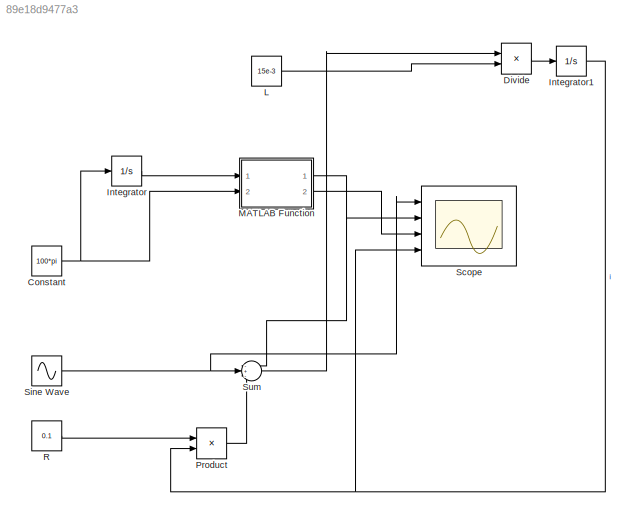
MODEL slx_89e18d9477a3
KIND model
CONFIG AbsTol = auto
CONFIG EnableMultiTasking = off
CONFIG FixedStep = auto
CONFIG MaxStep = 1e-5
CONFIG MinStep = auto
CONFIG RelTol = 1e-3
CONFIG SampleTimeConstraint = Unconstrained
CONFIG SolverName = ode23t
CONFIG StartTime = 0.0
CONFIG StopTime = 2
BLOCK [Constant] Constant
  Value = 100*pi
BLOCK [Product] Divide
  Inputs = */
  Ports = [2, 1]
BLOCK [Integrator] Integrator
  Ports = [1, 1]
BLOCK [Integrator] Integrator1
  Ports = [1, 1]
BLOCK [Constant] L
  Value = 15e-3
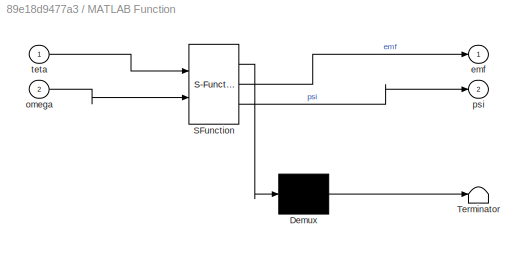
BLOCK [SubSystem] MATLAB Function
  ErrorFcn = Stateflow.Translate.translate
  PermitHierarchicalResolution = ExplicitOnly
  Ports = [2, 2]
  RequestExecContextInheritance = off
  SFBlockType = MATLAB Function
  TreatAsAtomicUnit = on
BLOCK [Demux] MATLAB Function/ Demux 
  Outputs = 1
  Ports = [1, 1]
BLOCK [S-Function] MATLAB Function/ SFunction 
  EnableBusSupport = on
  FunctionName = sf_sfun
  PortCounts = [2 3]
  Ports = [2, 3]
  SFcnIsStateOwnerBlock = off
  SFunctionDeploymentMode = off
  Tag = Stateflow S-Function 2
BLOCK [Terminator] MATLAB Function/ Terminator 
BLOCK [Outport] MATLAB Function/emf
BLOCK [Inport] MATLAB Function/omega
  Port = 2
BLOCK [Outport] MATLAB Function/psi
  Port = 2
BLOCK [Inport] MATLAB Function/teta
BLOCK [Product] Product
  Ports = [2, 1]
BLOCK [Constant] R
  Value = 0.1
BLOCK [Scope] Scope
  Floating = off
  NumInputPorts = 4
  Ports = [4]
  ScopeSpecificationString = Simulink.scopes.TimeScopeBlockCfg('CurrentConfiguration', extmgr.ConfigurationSet(extmgr.Configuration('Core','General UI',true),extmgr.Configuration('Core','Source UI',true),extmgr.Configuration('Sources','WiredSimulink',true),extmgr.Configuration('Visuals','Time Domain',true,'SerializedDisplays',{struct('MinYLimReal','-62.5','MaxYLimReal','62.5','YLabelReal','','MinYLimMag','0.00000','MaxYLimMag...<+3474ch>
BLOCK [Sin] Sine Wave
  Amplitude = 50
  Frequency = 100*pi
  Ports = [0, 1]
  SampleTime = 0
BLOCK [Sum] Sum
  Inputs = -+-
  Ports = [3, 1]
NET Constant:1 -> Integrator:1, MATLAB Function:2
LINE Divide:1 -> Integrator1:1
NET Integrator1:1 -> Product:2, Scope:4
LINE Integrator:1 -> MATLAB Function:1
LINE L:1 -> Divide:2
NET MATLAB Function:1 -> Scope:2, Sum:1
LINE MATLAB Function:2 -> Scope:3
LINE Product:1 -> Sum:3
LINE R:1 -> Product:1
NET Sine Wave:1 -> Scope:1, Sum:2
LINE Sum:1 -> Divide:1
note: NET lines group one-source signal fan-out (src -> all destinations, sorted); 1:1 wires keep LINE
CHART MATLAB Function states=1 transitions=1
  STATE_LABEL 'eML_blk_kernel()'
  STATE_LABEL 'SCRIPT:\nfunction [emf, psi] = fcn(teta, omega)\n%harmonic representation of EMF and flux in the machine\n\npsi1 = 0.15;\npsi3 = 0.0001;\n\nemf = omega * psi1 * sin(teta) + omega * 3 * psi3 * sin(3 * teta);\npsi = psi1 * cos(teta) + psi3 * cos(3 * teta);\n\n'
CHART  states=0 transitions=0
